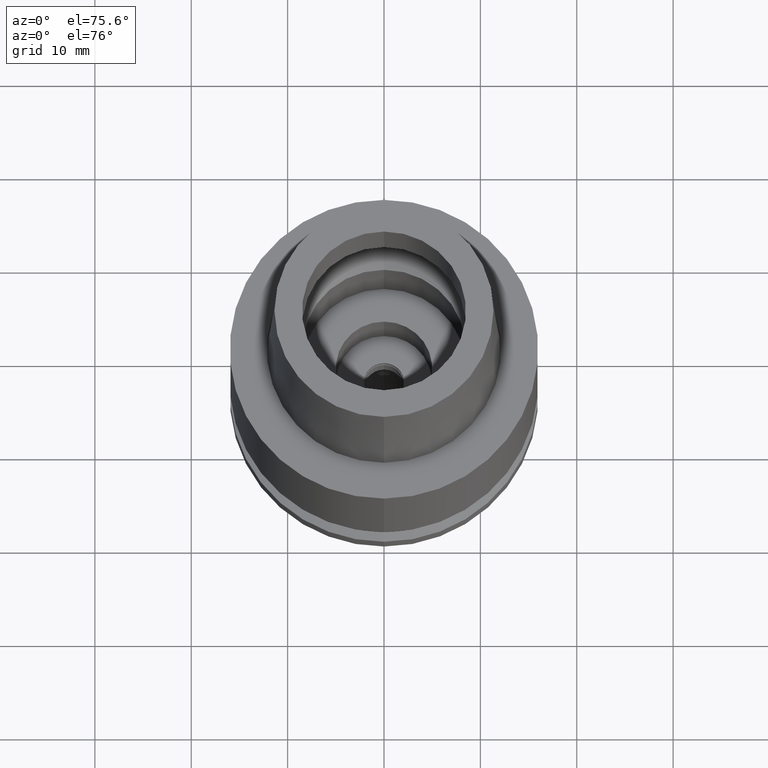
[diagram: clean part render]
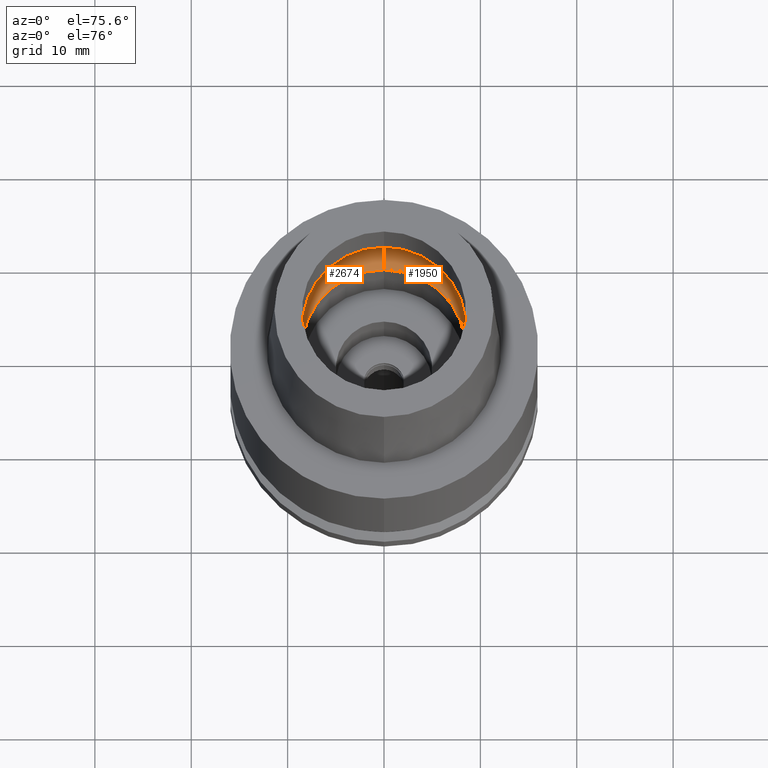
[diagram: same view with one multi-face feature highlighted, each face labeled with its STEP entity id]
A machine part, auxiliary view. The highlighted faces form ONE feature: a constant-radius fillet chain: 2 tangent blend faces with common blend radius 4 mm. The faces share edges in the B-rep.
Their STEP definitions:
[1] entity #2674 (Torus):
#186 = DIRECTION ( 'NONE',  ( 0.0000000000000000000, 0.0000000000000000000, 1.000000000000000000 ) ) ;
#323 = CIRCLE ( 'NONE', #2639, 3.999999999999999112 ) ;
#499 = EDGE_CURVE ( 'NONE', #1813, #2300, #1715, .T. ) ;
#694 = DIRECTION ( 'NONE',  ( 0.0000000000000000000, -0.5624999999999932276, -0.8267972847076892062 ) ) ;
#699 = CARTESIAN_POINT ( 'NONE',  ( 0.0000000000000000000, 0.0000000000000000000, 3.357000000000000206 ) ) ;
#750 = EDGE_CURVE ( 'NONE', #1813, #1756, #323, .T. ) ;
#790 = ORIENTED_EDGE ( 'NONE', *, *, #1771, .F. ) ;
#810 = CIRCLE ( 'NONE', #2327, 3.999999999999999112 ) ;
#843 = AXIS2_PLACEMENT_3D ( 'NONE', #863, #1271, #2527 ) ;
#861 = CARTESIAN_POINT ( 'NONE',  ( 0.0000000000000000000, 0.0000000000000000000, 3.357000000000000206 ) ) ;
#863 = CARTESIAN_POINT ( 'NONE',  ( 0.0000000000000000000, 0.0000000000000000000, 0.04981086116925999979 ) ) ;
#904 = ORIENTED_EDGE ( 'NONE', *, *, #750, .T. ) ;
#914 = DIRECTION ( 'NONE',  ( 0.0000000000000000000, 0.5624999999999932276, -0.8267972847076892062 ) ) ;
#936 = CIRCLE ( 'NONE', #1057, 10.25000000000000000 ) ;
#992 = EDGE_LOOP ( 'NONE', ( #2582, #790, #2363, #904 ) ) ;
#1057 = AXIS2_PLACEMENT_3D ( 'NONE', #699, #1526, #2609 ) ;
#1158 = TOROIDAL_SURFACE ( 'NONE', #2435, 6.250000000000000000, 4.000000000000000000 ) ;
#1253 = EDGE_CURVE ( 'NONE', #2408, #1756, #936, .T. ) ;
#1271 = DIRECTION ( 'NONE',  ( 0.0000000000000000000, 0.0000000000000000000, 1.000000000000000000 ) ) ;
#1316 = CARTESIAN_POINT ( 'NONE',  ( 0.0000000000000000000, -8.500000000000000000, 0.04981086116925999979 ) ) ;
#1365 = DIRECTION ( 'NONE',  ( 1.000000000000000000, 0.0000000000000000000, 0.0000000000000000000 ) ) ;
#1500 = CARTESIAN_POINT ( 'NONE',  ( 0.0000000000000000000, -10.25000000000000000, 3.357000000000000206 ) ) ;
#1526 = DIRECTION ( 'NONE',  ( 0.0000000000000000000, 0.0000000000000000000, -1.000000000000000000 ) ) ;
#1715 = CIRCLE ( 'NONE', #843, 8.500000000000000000 ) ;
#1723 = DIRECTION ( 'NONE',  ( -1.000000000000000000, 0.0000000000000000000, 0.0000000000000000000 ) ) ;
#1738 = CARTESIAN_POINT ( 'NONE',  ( 0.0000000000000000000, 8.500000000000000000, 0.04981086116926999874 ) ) ;
#1756 = VERTEX_POINT ( 'NONE', #2136 ) ;
#1768 = CARTESIAN_POINT ( 'NONE',  ( 0.0000000000000000000, -6.250000000000000000, 3.357000000000000206 ) ) ;
#1771 = EDGE_CURVE ( 'NONE', #2300, #2408, #810, .T. ) ;
#1813 = VERTEX_POINT ( 'NONE', #1738 ) ;
#1955 = CARTESIAN_POINT ( 'NONE',  ( 0.0000000000000000000, 6.250000000000000000, 3.357000000000000206 ) ) ;
#2076 = DIRECTION ( 'NONE',  ( 0.0000000000000000000, 1.000000000000000000, 0.0000000000000000000 ) ) ;
#2136 = CARTESIAN_POINT ( 'NONE',  ( 0.0000000000000000000, 10.25000000000000000, 3.357000000000000206 ) ) ;
#2300 = VERTEX_POINT ( 'NONE', #1316 ) ;
#2305 = FACE_OUTER_BOUND ( 'NONE', #992, .T. ) ;
#2327 = AXIS2_PLACEMENT_3D ( 'NONE', #1768, #1723, #694 ) ;
#2363 = ORIENTED_EDGE ( 'NONE', *, *, #499, .F. ) ;
#2408 = VERTEX_POINT ( 'NONE', #1500 ) ;
#2435 = AXIS2_PLACEMENT_3D ( 'NONE', #861, #186, #2076 ) ;
#2527 = DIRECTION ( 'NONE',  ( 0.0000000000000000000, 1.000000000000000000, 0.0000000000000000000 ) ) ;
#2582 = ORIENTED_EDGE ( 'NONE', *, *, #1253, .F. ) ;
#2609 = DIRECTION ( 'NONE',  ( 0.0000000000000000000, -1.000000000000000000, 0.0000000000000000000 ) ) ;
#2639 = AXIS2_PLACEMENT_3D ( 'NONE', #1955, #1365, #914 ) ;
#2674 = ADVANCED_FACE ( 'NONE', ( #2305 ), #1158, .F. ) ;
[2] entity #1950 (Torus):
#323 = CIRCLE ( 'NONE', #2639, 3.999999999999999112 ) ;
#354 = CARTESIAN_POINT ( 'NONE',  ( 0.0000000000000000000, 0.0000000000000000000, 3.357000000000000206 ) ) ;
#366 = CARTESIAN_POINT ( 'NONE',  ( 0.0000000000000000000, 0.0000000000000000000, 3.357000000000000206 ) ) ;
#593 = ORIENTED_EDGE ( 'NONE', *, *, #1053, .F. ) ;
#694 = DIRECTION ( 'NONE',  ( 0.0000000000000000000, -0.5624999999999932276, -0.8267972847076892062 ) ) ;
#712 = EDGE_CURVE ( 'NONE', #2300, #1813, #1458, .T. ) ;
#750 = EDGE_CURVE ( 'NONE', #1813, #1756, #323, .T. ) ;
#793 = DIRECTION ( 'NONE',  ( 0.0000000000000000000, 0.0000000000000000000, 1.000000000000000000 ) ) ;
#810 = CIRCLE ( 'NONE', #2327, 3.999999999999999112 ) ;
#914 = DIRECTION ( 'NONE',  ( 0.0000000000000000000, 0.5624999999999932276, -0.8267972847076892062 ) ) ;
#1053 = EDGE_CURVE ( 'NONE', #1756, #2408, #1376, .T. ) ;
#1113 = DIRECTION ( 'NONE',  ( 0.0000000000000000000, -1.000000000000000000, 0.0000000000000000000 ) ) ;
#1316 = CARTESIAN_POINT ( 'NONE',  ( 0.0000000000000000000, -8.500000000000000000, 0.04981086116925999979 ) ) ;
#1351 = CARTESIAN_POINT ( 'NONE',  ( 0.0000000000000000000, 0.0000000000000000000, 0.04981086116925999979 ) ) ;
#1365 = DIRECTION ( 'NONE',  ( 1.000000000000000000, 0.0000000000000000000, 0.0000000000000000000 ) ) ;
#1373 = DIRECTION ( 'NONE',  ( 0.0000000000000000000, 1.000000000000000000, 0.0000000000000000000 ) ) ;
#1376 = CIRCLE ( 'NONE', #1640, 10.25000000000000000 ) ;
#1418 = EDGE_LOOP ( 'NONE', ( #2530, #2260, #593, #1991 ) ) ;
#1458 = CIRCLE ( 'NONE', #1816, 8.500000000000000000 ) ;
#1500 = CARTESIAN_POINT ( 'NONE',  ( 0.0000000000000000000, -10.25000000000000000, 3.357000000000000206 ) ) ;
#1640 = AXIS2_PLACEMENT_3D ( 'NONE', #366, #2339, #2139 ) ;
#1723 = DIRECTION ( 'NONE',  ( -1.000000000000000000, 0.0000000000000000000, 0.0000000000000000000 ) ) ;
#1738 = CARTESIAN_POINT ( 'NONE',  ( 0.0000000000000000000, 8.500000000000000000, 0.04981086116926999874 ) ) ;
#1756 = VERTEX_POINT ( 'NONE', #2136 ) ;
#1768 = CARTESIAN_POINT ( 'NONE',  ( 0.0000000000000000000, -6.250000000000000000, 3.357000000000000206 ) ) ;
#1771 = EDGE_CURVE ( 'NONE', #2300, #2408, #810, .T. ) ;
#1813 = VERTEX_POINT ( 'NONE', #1738 ) ;
#1816 = AXIS2_PLACEMENT_3D ( 'NONE', #1351, #2418, #1113 ) ;
#1848 = FACE_OUTER_BOUND ( 'NONE', #1418, .T. ) ;
#1901 = AXIS2_PLACEMENT_3D ( 'NONE', #354, #793, #1373 ) ;
#1950 = ADVANCED_FACE ( 'NONE', ( #1848 ), #2285, .F. ) ;
#1955 = CARTESIAN_POINT ( 'NONE',  ( 0.0000000000000000000, 6.250000000000000000, 3.357000000000000206 ) ) ;
#1991 = ORIENTED_EDGE ( 'NONE', *, *, #750, .F. ) ;
#2136 = CARTESIAN_POINT ( 'NONE',  ( 0.0000000000000000000, 10.25000000000000000, 3.357000000000000206 ) ) ;
#2139 = DIRECTION ( 'NONE',  ( 0.0000000000000000000, 1.000000000000000000, 0.0000000000000000000 ) ) ;
#2260 = ORIENTED_EDGE ( 'NONE', *, *, #1771, .T. ) ;
#2285 = TOROIDAL_SURFACE ( 'NONE', #1901, 6.250000000000000000, 4.000000000000000000 ) ;
#2300 = VERTEX_POINT ( 'NONE', #1316 ) ;
#2327 = AXIS2_PLACEMENT_3D ( 'NONE', #1768, #1723, #694 ) ;
#2339 = DIRECTION ( 'NONE',  ( 0.0000000000000000000, 0.0000000000000000000, -1.000000000000000000 ) ) ;
#2408 = VERTEX_POINT ( 'NONE', #1500 ) ;
#2418 = DIRECTION ( 'NONE',  ( 0.0000000000000000000, 0.0000000000000000000, 1.000000000000000000 ) ) ;
#2530 = ORIENTED_EDGE ( 'NONE', *, *, #712, .F. ) ;
#2639 = AXIS2_PLACEMENT_3D ( 'NONE', #1955, #1365, #914 ) ;